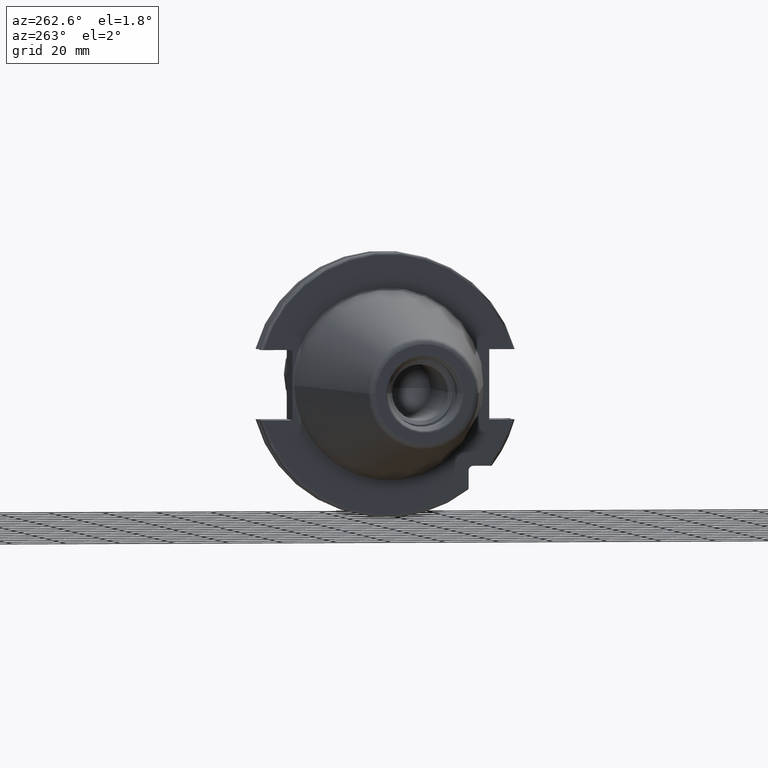
[diagram: clean part render]
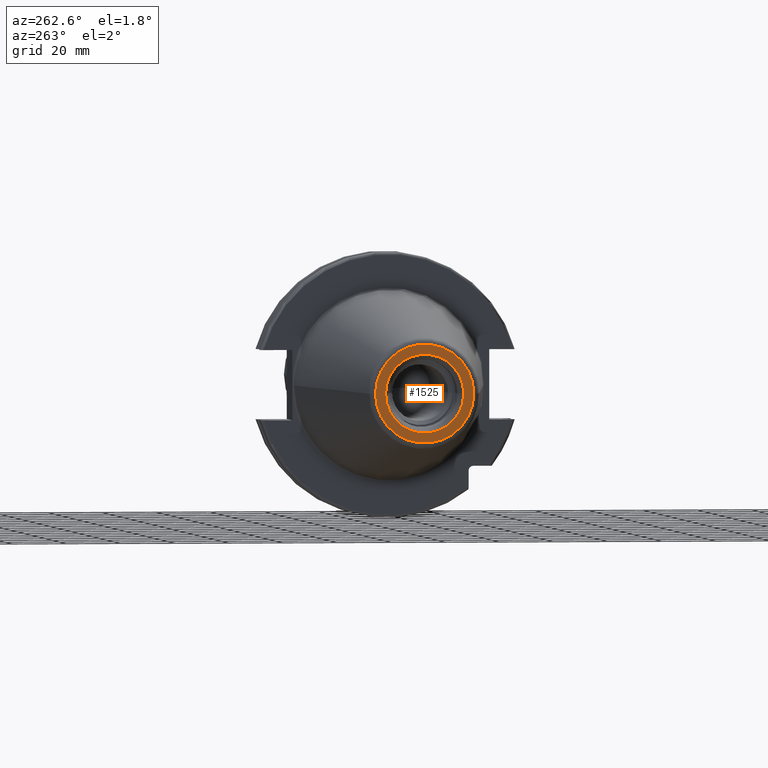
[diagram: same view with one face highlighted and labeled with its STEP entity id]
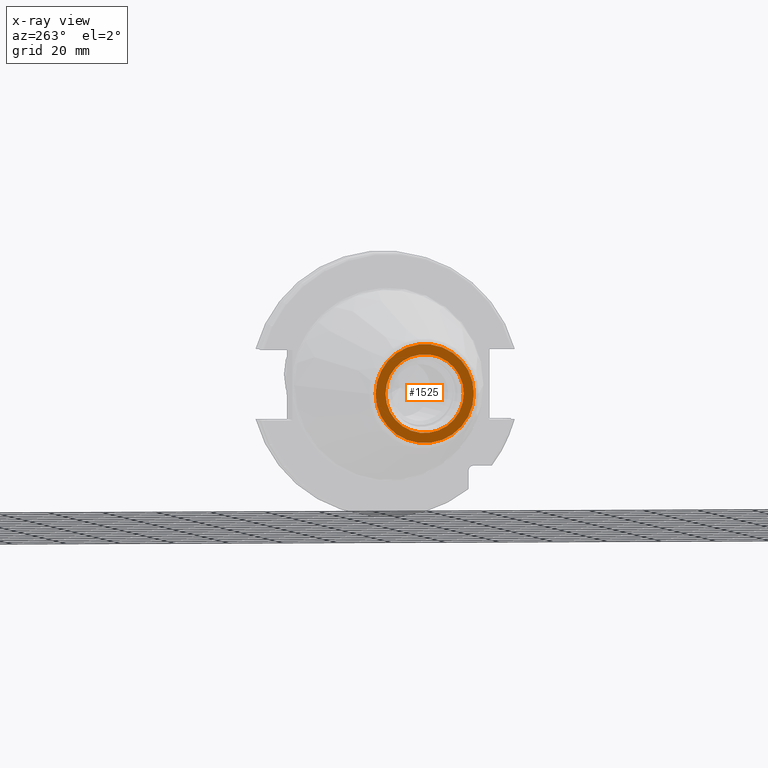
[diagram: x-ray of the same camera — body ghosted, the highlighted face saturated]
A machine part, auxiliary view. The second image highlights one B-rep face of the part: STEP entity #1525.
The next image is the same camera in x-ray: the body ghosted, the highlighted face saturated — about 0% of this face is hidden behind the body in this view.
In plain terms, the highlighted planar face has unit normal (1, 0, 0).
Its self-contained STEP definition (entity closure, byte-faithful):
#2=CARTESIAN_POINT('',(-1.016E2,0.E0,0.E0));
#3=DIRECTION('',(-1.E0,0.E0,0.E0));
#4=DIRECTION('',(0.E0,1.E0,0.E0));
#5=AXIS2_PLACEMENT_3D('',#2,#3,#4);
#7=CARTESIAN_POINT('',(-1.016E2,0.E0,0.E0));
#8=DIRECTION('',(1.E0,0.E0,0.E0));
#9=DIRECTION('',(0.E0,1.E0,0.E0));
#10=AXIS2_PLACEMENT_3D('',#7,#8,#9);
#12=CARTESIAN_POINT('',(-1.016E2,0.E0,0.E0));
#13=DIRECTION('',(1.E0,0.E0,0.E0));
#14=DIRECTION('',(0.E0,1.E0,0.E0));
#15=AXIS2_PLACEMENT_3D('',#12,#13,#14);
#17=CARTESIAN_POINT('',(-1.016E2,0.E0,0.E0));
#18=DIRECTION('',(1.E0,0.E0,0.E0));
#19=DIRECTION('',(0.E0,-1.E0,0.E0));
#20=AXIS2_PLACEMENT_3D('',#17,#18,#19);
#1253=CARTESIAN_POINT('',(-1.016E2,1.816144700117E1,0.E0));
#1255=VERTEX_POINT('',#1253);
#1257=CARTESIAN_POINT('',(-1.016E2,-1.816144700117E1,0.E0));
#1259=VERTEX_POINT('',#1257);
#1316=CARTESIAN_POINT('',(-1.016E2,1.446188021535E1,0.E0));
#1317=CARTESIAN_POINT('',(-1.016E2,-1.446188021535E1,0.E0));
#1318=VERTEX_POINT('',#1316);
#1319=VERTEX_POINT('',#1317);
#1508=CARTESIAN_POINT('',(-1.016E2,0.E0,0.E0));
#1509=DIRECTION('',(1.E0,0.E0,0.E0));
#1510=DIRECTION('',(0.E0,-1.E0,0.E0));
#1511=AXIS2_PLACEMENT_3D('',#1508,#1509,#1510);
#1512=PLANE('',#1511);
#1514=ORIENTED_EDGE('',*,*,#1513,.F.);
#1516=ORIENTED_EDGE('',*,*,#1515,.T.);
#1517=EDGE_LOOP('',(#1514,#1516));
#1518=FACE_OUTER_BOUND('',#1517,.F.);
#1520=ORIENTED_EDGE('',*,*,#1519,.F.);
#1522=ORIENTED_EDGE('',*,*,#1521,.F.);
#1523=EDGE_LOOP('',(#1520,#1522));
#1524=FACE_BOUND('',#1523,.F.);
#1525=ADVANCED_FACE('',(#1518,#1524),#1512,.F.);
#6=CIRCLE('',#5,1.816144700117E1);
#11=CIRCLE('',#10,1.816144700117E1);
#16=CIRCLE('',#15,1.446188021535E1);
#21=CIRCLE('',#20,1.446188021535E1);
#1513=EDGE_CURVE('',#1255,#1259,#6,.T.);
#1515=EDGE_CURVE('',#1255,#1259,#11,.T.);
#1519=EDGE_CURVE('',#1318,#1319,#16,.T.);
#1521=EDGE_CURVE('',#1319,#1318,#21,.T.);